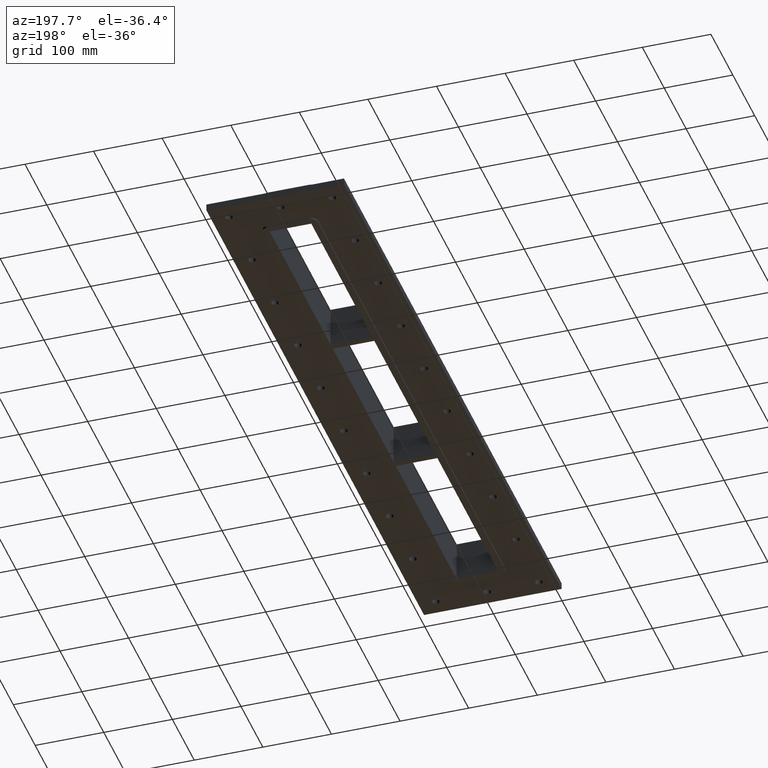
[diagram: clean part render]
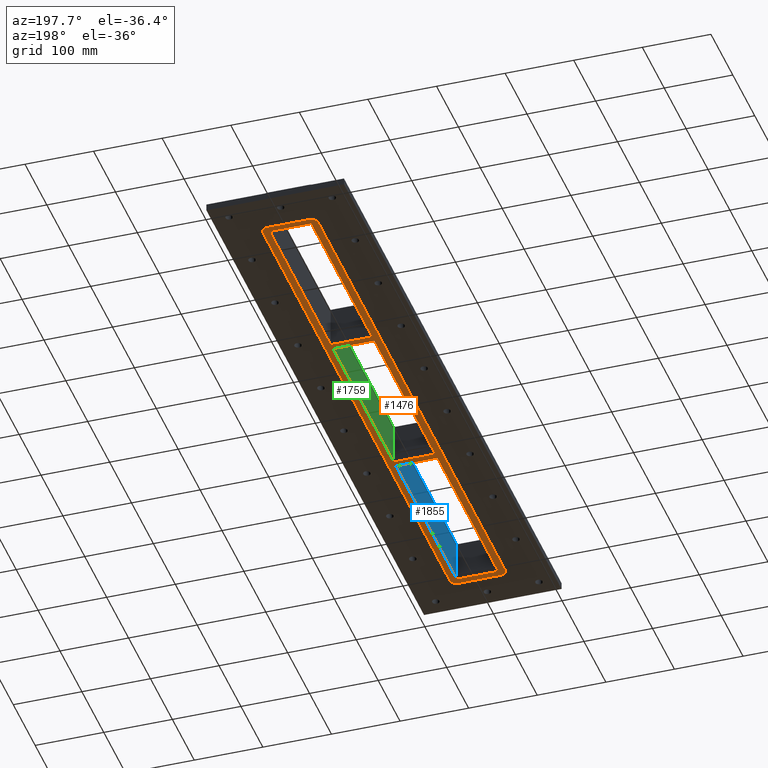
[diagram: same view with three faces highlighted in distinct colors, each labeled with its STEP entity id]
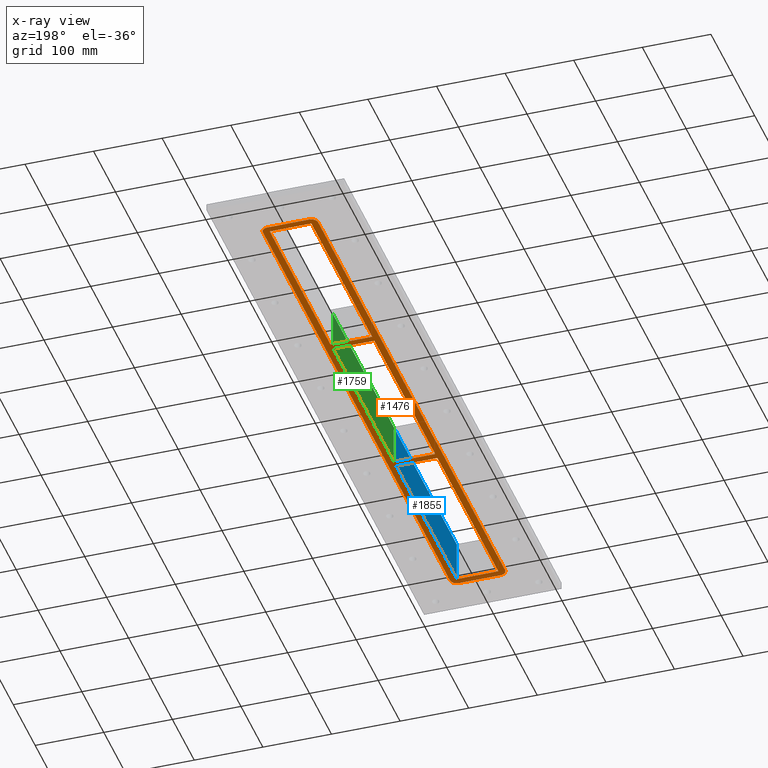
[diagram: x-ray of the same camera — body ghosted, the three highlighted faces saturated]
A machine part, auxiliary view with three faces highlighted in distinct colors.
The next image is the same camera in x-ray (body ghosted, the three faces saturated) — at least one of them is partly hidden behind the body in this view.
Their STEP definitions:

[orange] entity #1476 — the highlighted planar face has unit normal (0, 0, 1).
#1110=CARTESIAN_POINT('',(30.250000000000085,-437.00000000000011,-30.0));
#1111=VERTEX_POINT('',#1110);
#1118=CARTESIAN_POINT('',(40.250000000000085,-427.00000000000011,-30.0));
#1119=VERTEX_POINT('',#1118);
#1120=CARTESIAN_POINT('',(30.250000000000085,-427.00000000000011,-30.0));
#1121=DIRECTION('',(0.0,0.0,1.0));
#1122=DIRECTION('',(0.707106781186547,-0.707106781186547,0.0));
#1123=AXIS2_PLACEMENT_3D('',#1120,#1121,#1122);
#1124=CIRCLE('',#1123,9.999999999999998);
#1125=EDGE_CURVE('',#1111,#1119,#1124,.T.);
#1174=CARTESIAN_POINT('',(-30.249999999999822,-437.00000000000011,-30.0));
#1175=VERTEX_POINT('',#1174);
#1182=CARTESIAN_POINT('',(30.250000000000085,-437.00000000000011,-30.0));
#1183=DIRECTION('',(-1.0,0.0,0.0));
#1184=VECTOR('',#1183,60.499999999999901);
#1185=LINE('',#1182,#1184);
#1186=EDGE_CURVE('',#1111,#1175,#1185,.T.);
#1222=CARTESIAN_POINT('',(-40.249999999999815,-427.00000000000017,-30.0));
#1223=VERTEX_POINT('',#1222);
#1230=CARTESIAN_POINT('',(-30.249999999999822,-427.00000000000017,-30.0));
#1231=DIRECTION('',(0.0,0.0,1.0));
#1232=DIRECTION('',(-0.707106781186547,-0.707106781186548,0.0));
#1233=AXIS2_PLACEMENT_3D('',#1230,#1231,#1232);
#1234=CIRCLE('',#1233,9.999999999999998);
#1235=EDGE_CURVE('',#1223,#1175,#1234,.T.);
#1272=CARTESIAN_POINT('',(-40.250000000000085,426.99999999999989,-30.0));
#1273=VERTEX_POINT('',#1272);
#1280=CARTESIAN_POINT('',(-40.249999999999822,-427.00000000000011,-30.0));
#1281=DIRECTION('',(0.0,1.0,0.0));
#1282=VECTOR('',#1281,854.0);
#1283=LINE('',#1280,#1282);
#1284=EDGE_CURVE('',#1223,#1273,#1283,.T.);
#1320=CARTESIAN_POINT('',(-30.250000000000085,436.99999999999989,-30.0));
#1321=VERTEX_POINT('',#1320);
#1328=CARTESIAN_POINT('',(-30.250000000000078,426.99999999999989,-30.0));
#1329=DIRECTION('',(0.0,0.0,1.0));
#1330=DIRECTION('',(-0.707106781186548,0.707106781186547,0.0));
#1331=AXIS2_PLACEMENT_3D('',#1328,#1329,#1330);
#1332=CIRCLE('',#1331,10.0);
#1333=EDGE_CURVE('',#1321,#1273,#1332,.T.);
#1339=CARTESIAN_POINT('',(2.903213E-014,-8.292767E-014,-30.0));
#1340=DIRECTION('',(0.0,0.0,1.0));
#1341=DIRECTION('',(1.0,0.0,0.0));
#1342=AXIS2_PLACEMENT_3D('',#1339,#1340,#1341);
#1343=PLANE('',#1342);
#1344=ORIENTED_EDGE('',*,*,#1125,.F.);
#1345=ORIENTED_EDGE('',*,*,#1186,.T.);
#1346=ORIENTED_EDGE('',*,*,#1235,.F.);
#1347=ORIENTED_EDGE('',*,*,#1284,.T.);
#1348=ORIENTED_EDGE('',*,*,#1333,.F.);
#1349=CARTESIAN_POINT('',(30.249999999999922,436.99999999999989,-30.0));
#1350=VERTEX_POINT('',#1349);
#1351=CARTESIAN_POINT('',(-30.250000000000078,436.99999999999989,-30.0));
#1352=DIRECTION('',(1.0,0.0,0.0));
#1353=VECTOR('',#1352,60.5);
#1354=LINE('',#1351,#1353);
#1355=EDGE_CURVE('',#1321,#1350,#1354,.T.);
#1356=ORIENTED_EDGE('',*,*,#1355,.T.);
#1357=CARTESIAN_POINT('',(40.249999999999922,426.99999999999994,-30.0));
#1358=VERTEX_POINT('',#1357);
#1359=CARTESIAN_POINT('',(30.249999999999922,426.99999999999989,-30.0));
#1360=DIRECTION('',(0.0,0.0,1.0));
#1361=DIRECTION('',(0.707106781186547,0.707106781186547,0.0));
#1362=AXIS2_PLACEMENT_3D('',#1359,#1360,#1361);
#1363=CIRCLE('',#1362,9.999999999999998);
#1364=EDGE_CURVE('',#1358,#1350,#1363,.T.);
#1365=ORIENTED_EDGE('',*,*,#1364,.F.);
#1366=CARTESIAN_POINT('',(40.249999999999929,426.99999999999989,-30.0));
#1367=DIRECTION('',(0.0,-1.0,0.0));
#1368=VECTOR('',#1367,854.0);
#1369=LINE('',#1366,#1368);
#1370=EDGE_CURVE('',#1358,#1119,#1369,.T.);
#1371=ORIENTED_EDGE('',*,*,#1370,.T.);
#1372=EDGE_LOOP('',(#1344,#1345,#1346,#1347,#1348,#1356,#1365,#1371));
#1373=FACE_OUTER_BOUND('',#1372,.T.);
#1374=CARTESIAN_POINT('',(-30.250000000000089,426.99999999999989,-30.0));
#1375=VERTEX_POINT('',#1374);
#1376=CARTESIAN_POINT('',(-30.250000000000004,149.00000000000011,-30.0));
#1377=VERTEX_POINT('',#1376);
#1378=CARTESIAN_POINT('',(-30.250000000000089,426.99999999999989,-30.0));
#1379=DIRECTION('',(0.0,-1.0,0.0));
#1380=VECTOR('',#1379,277.99999999999977);
#1381=LINE('',#1378,#1380);
#1382=EDGE_CURVE('',#1375,#1377,#1381,.T.);
#1383=ORIENTED_EDGE('',*,*,#1382,.T.);
#1384=CARTESIAN_POINT('',(30.250000000000004,148.99999999999991,-30.0));
#1385=VERTEX_POINT('',#1384);
#1386=CARTESIAN_POINT('',(-30.250000000000007,149.00000000000014,-30.0));
#1387=DIRECTION('',(1.0,0.0,0.0));
#1388=VECTOR('',#1387,60.500000000000014);
#1389=LINE('',#1386,#1388);
#1390=EDGE_CURVE('',#1377,#1385,#1389,.T.);
#1391=ORIENTED_EDGE('',*,*,#1390,.T.);
#1392=CARTESIAN_POINT('',(30.249999999999954,426.99999999999989,-30.0));
#1393=VERTEX_POINT('',#1392);
#1394=CARTESIAN_POINT('',(30.250000000000004,148.99999999999991,-30.0));
#1395=DIRECTION('',(0.0,1.0,0.0));
#1396=VECTOR('',#1395,278.0);
#1397=LINE('',#1394,#1396);
#1398=EDGE_CURVE('',#1385,#1393,#1397,.T.);
#1399=ORIENTED_EDGE('',*,*,#1398,.T.);
#1400=CARTESIAN_POINT('',(30.24999999999995,426.99999999999989,-30.0));
#1401=DIRECTION('',(-1.0,0.0,0.0));
#1402=VECTOR('',#1401,60.500000000000043);
#1403=LINE('',#1400,#1402);
#1404=EDGE_CURVE('',#1393,#1375,#1403,.T.);
#1405=ORIENTED_EDGE('',*,*,#1404,.T.);
#1406=EDGE_LOOP('',(#1383,#1391,#1399,#1405));
#1407=FACE_BOUND('',#1406,.T.);
#1408=CARTESIAN_POINT('',(-30.25,138.99999999999991,-30.0));
#1409=VERTEX_POINT('',#1408);
#1410=CARTESIAN_POINT('',(-30.249999999999915,-138.99999999999989,-30.0));
#1411=VERTEX_POINT('',#1410);
#1412=CARTESIAN_POINT('',(-30.249999999999996,138.99999999999991,-30.0));
#1413=DIRECTION('',(0.0,-1.0,0.0));
#1414=VECTOR('',#1413,277.99999999999977);
#1415=LINE('',#1412,#1414);
#1416=EDGE_CURVE('',#1409,#1411,#1415,.T.);
#1417=ORIENTED_EDGE('',*,*,#1416,.T.);
#1418=CARTESIAN_POINT('',(30.250000000000092,-139.00000000000009,-30.0));
#1419=VERTEX_POINT('',#1418);
#1420=CARTESIAN_POINT('',(-30.249999999999915,-138.99999999999986,-30.0));
#1421=DIRECTION('',(1.0,0.0,0.0));
#1422=VECTOR('',#1421,60.500000000000007);
#1423=LINE('',#1420,#1422);
#1424=EDGE_CURVE('',#1411,#1419,#1423,.T.);
#1425=ORIENTED_EDGE('',*,*,#1424,.T.);
#1426=CARTESIAN_POINT('',(30.250000000000043,138.99999999999991,-30.0));
#1427=VERTEX_POINT('',#1426);
#1428=CARTESIAN_POINT('',(30.250000000000092,-139.00000000000009,-30.0));
#1429=DIRECTION('',(0.0,1.0,0.0));
#1430=VECTOR('',#1429,278.0);
#1431=LINE('',#1428,#1430);
#1432=EDGE_CURVE('',#1419,#1427,#1431,.T.);
#1433=ORIENTED_EDGE('',*,*,#1432,.T.);
#1434=CARTESIAN_POINT('',(30.250000000000043,138.99999999999991,-30.0));
#1435=DIRECTION('',(-1.0,0.0,0.0));
#1436=VECTOR('',#1435,60.500000000000043);
#1437=LINE('',#1434,#1436);
#1438=EDGE_CURVE('',#1427,#1409,#1437,.T.);
#1439=ORIENTED_EDGE('',*,*,#1438,.T.);
#1440=EDGE_LOOP('',(#1417,#1425,#1433,#1439));
#1441=FACE_BOUND('',#1440,.T.);
#1442=CARTESIAN_POINT('',(30.250000000000181,-427.00000000000011,-30.0));
#1443=VERTEX_POINT('',#1442);
#1444=CARTESIAN_POINT('',(30.250000000000131,-149.00000000000009,-30.0));
#1445=VERTEX_POINT('',#1444);
#1446=CARTESIAN_POINT('',(30.250000000000181,-427.00000000000011,-30.0));
#1447=DIRECTION('',(0.0,1.0,0.0));
#1448=VECTOR('',#1447,278.0);
#1449=LINE('',#1446,#1448);
#1450=EDGE_CURVE('',#1443,#1445,#1449,.T.);
#1451=ORIENTED_EDGE('',*,*,#1450,.T.);
#1452=CARTESIAN_POINT('',(-30.249999999999911,-149.00000000000009,-30.0));
#1453=VERTEX_POINT('',#1452);
#1454=CARTESIAN_POINT('',(30.250000000000131,-149.00000000000009,-30.0));
#1455=DIRECTION('',(-1.0,0.0,0.0));
#1456=VECTOR('',#1455,60.500000000000043);
#1457=LINE('',#1454,#1456);
#1458=EDGE_CURVE('',#1445,#1453,#1457,.T.);
#1459=ORIENTED_EDGE('',*,*,#1458,.T.);
#1460=CARTESIAN_POINT('',(-30.249999999999826,-426.99999999999989,-30.0));
#1461=VERTEX_POINT('',#1460);
#1462=CARTESIAN_POINT('',(-30.249999999999908,-149.00000000000009,-30.0));
#1463=DIRECTION('',(0.0,-1.0,0.0));
#1464=VECTOR('',#1463,277.99999999999977);
#1465=LINE('',#1462,#1464);
#1466=EDGE_CURVE('',#1453,#1461,#1465,.T.);
#1467=ORIENTED_EDGE('',*,*,#1466,.T.);
#1468=CARTESIAN_POINT('',(-30.249999999999822,-426.99999999999983,-30.0));
#1469=DIRECTION('',(1.0,0.0,0.0));
#1470=VECTOR('',#1469,60.5);
#1471=LINE('',#1468,#1470);
#1472=EDGE_CURVE('',#1461,#1443,#1471,.T.);
#1473=ORIENTED_EDGE('',*,*,#1472,.T.);
#1474=EDGE_LOOP('',(#1451,#1459,#1467,#1473));
#1475=FACE_BOUND('',#1474,.T.);
#1476=ADVANCED_FACE('',(#1373,#1407,#1441,#1475),#1343,.F.);

[blue] entity #1855 — the highlighted planar face has unit normal (1, 0, 0).
#1442=CARTESIAN_POINT('',(30.250000000000181,-427.00000000000011,-30.0));
#1443=VERTEX_POINT('',#1442);
#1444=CARTESIAN_POINT('',(30.250000000000131,-149.00000000000009,-30.0));
#1445=VERTEX_POINT('',#1444);
#1446=CARTESIAN_POINT('',(30.250000000000181,-427.00000000000011,-30.0));
#1447=DIRECTION('',(0.0,1.0,0.0));
#1448=VECTOR('',#1447,278.0);
#1449=LINE('',#1446,#1448);
#1450=EDGE_CURVE('',#1443,#1445,#1449,.T.);
#1815=CARTESIAN_POINT('',(30.250000000000181,-427.00000000000011,30.0));
#1816=VERTEX_POINT('',#1815);
#1823=CARTESIAN_POINT('',(30.250000000000181,-427.00000000000011,30.0));
#1824=DIRECTION('',(0.0,0.0,-1.0));
#1825=VECTOR('',#1824,60.0);
#1826=LINE('',#1823,#1825);
#1827=EDGE_CURVE('',#1816,#1443,#1826,.T.);
#1832=CARTESIAN_POINT('',(30.250000000000131,-149.00000000000009,30.0));
#1833=DIRECTION('',(1.0,0.0,0.0));
#1834=DIRECTION('',(0.0,-1.0,0.0));
#1835=AXIS2_PLACEMENT_3D('',#1832,#1833,#1834);
#1836=PLANE('',#1835);
#1837=ORIENTED_EDGE('',*,*,#1450,.F.);
#1838=ORIENTED_EDGE('',*,*,#1827,.F.);
#1839=CARTESIAN_POINT('',(30.250000000000131,-149.00000000000009,30.0));
#1840=VERTEX_POINT('',#1839);
#1841=CARTESIAN_POINT('',(30.250000000000135,-149.00000000000009,30.0));
#1842=DIRECTION('',(0.0,-1.0,0.0));
#1843=VECTOR('',#1842,278.0);
#1844=LINE('',#1841,#1843);
#1845=EDGE_CURVE('',#1840,#1816,#1844,.T.);
#1846=ORIENTED_EDGE('',*,*,#1845,.F.);
#1847=CARTESIAN_POINT('',(30.250000000000131,-149.00000000000009,30.0));
#1848=DIRECTION('',(0.0,0.0,-1.0));
#1849=VECTOR('',#1848,60.0);
#1850=LINE('',#1847,#1849);
#1851=EDGE_CURVE('',#1840,#1445,#1850,.T.);
#1852=ORIENTED_EDGE('',*,*,#1851,.T.);
#1853=EDGE_LOOP('',(#1837,#1838,#1846,#1852));
#1854=FACE_OUTER_BOUND('',#1853,.T.);
#1855=ADVANCED_FACE('',(#1854),#1836,.F.);

[green] entity #1759 — the highlighted planar face has unit normal (1, 0, 0).
#1418=CARTESIAN_POINT('',(30.250000000000092,-139.00000000000009,-30.0));
#1419=VERTEX_POINT('',#1418);
#1426=CARTESIAN_POINT('',(30.250000000000043,138.99999999999991,-30.0));
#1427=VERTEX_POINT('',#1426);
#1428=CARTESIAN_POINT('',(30.250000000000092,-139.00000000000009,-30.0));
#1429=DIRECTION('',(0.0,1.0,0.0));
#1430=VECTOR('',#1429,278.0);
#1431=LINE('',#1428,#1430);
#1432=EDGE_CURVE('',#1419,#1427,#1431,.T.);
#1719=CARTESIAN_POINT('',(30.250000000000092,-139.00000000000009,30.0));
#1720=VERTEX_POINT('',#1719);
#1727=CARTESIAN_POINT('',(30.250000000000092,-139.00000000000009,30.0));
#1728=DIRECTION('',(0.0,0.0,-1.0));
#1729=VECTOR('',#1728,60.0);
#1730=LINE('',#1727,#1729);
#1731=EDGE_CURVE('',#1720,#1419,#1730,.T.);
#1736=CARTESIAN_POINT('',(30.250000000000043,138.99999999999991,30.0));
#1737=DIRECTION('',(1.0,0.0,0.0));
#1738=DIRECTION('',(0.0,-1.0,0.0));
#1739=AXIS2_PLACEMENT_3D('',#1736,#1737,#1738);
#1740=PLANE('',#1739);
#1741=ORIENTED_EDGE('',*,*,#1432,.F.);
#1742=ORIENTED_EDGE('',*,*,#1731,.F.);
#1743=CARTESIAN_POINT('',(30.250000000000043,138.99999999999991,30.0));
#1744=VERTEX_POINT('',#1743);
#1745=CARTESIAN_POINT('',(30.250000000000046,138.99999999999991,30.0));
#1746=DIRECTION('',(0.0,-1.0,0.0));
#1747=VECTOR('',#1746,278.0);
#1748=LINE('',#1745,#1747);
#1749=EDGE_CURVE('',#1744,#1720,#1748,.T.);
#1750=ORIENTED_EDGE('',*,*,#1749,.F.);
#1751=CARTESIAN_POINT('',(30.250000000000043,138.99999999999991,30.0));
#1752=DIRECTION('',(0.0,0.0,-1.0));
#1753=VECTOR('',#1752,60.0);
#1754=LINE('',#1751,#1753);
#1755=EDGE_CURVE('',#1744,#1427,#1754,.T.);
#1756=ORIENTED_EDGE('',*,*,#1755,.T.);
#1757=EDGE_LOOP('',(#1741,#1742,#1750,#1756));
#1758=FACE_OUTER_BOUND('',#1757,.T.);
#1759=ADVANCED_FACE('',(#1758),#1740,.F.);